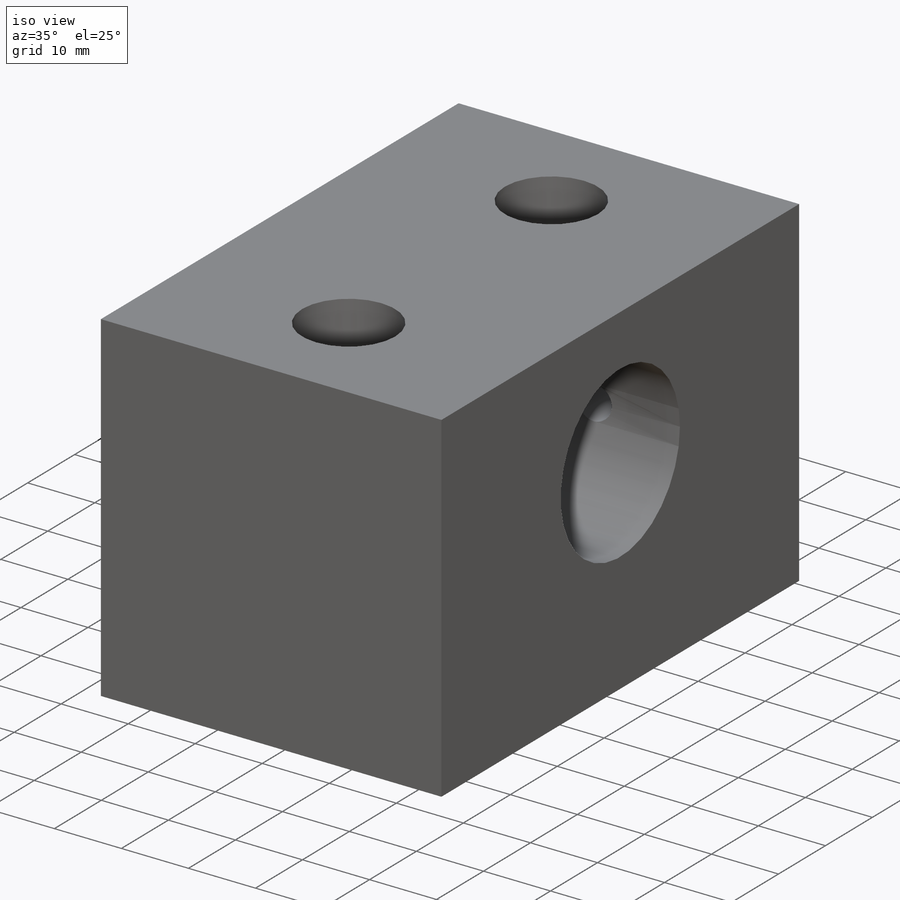
[diagram: iso view]
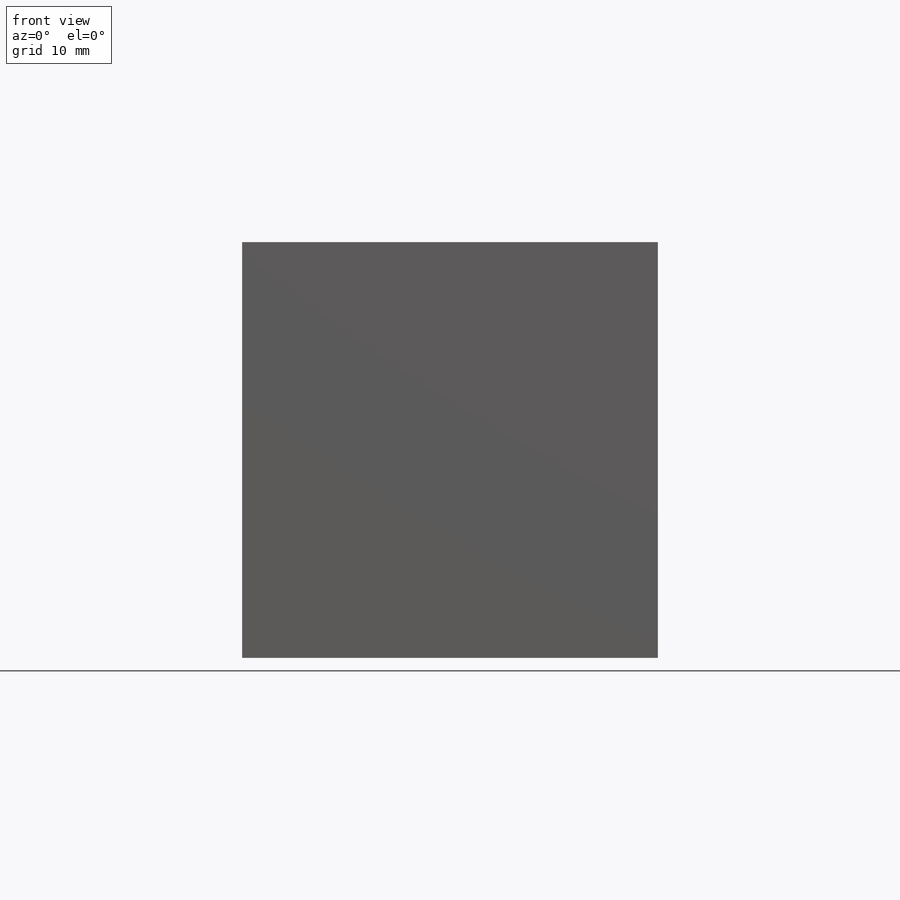
[diagram: front view]
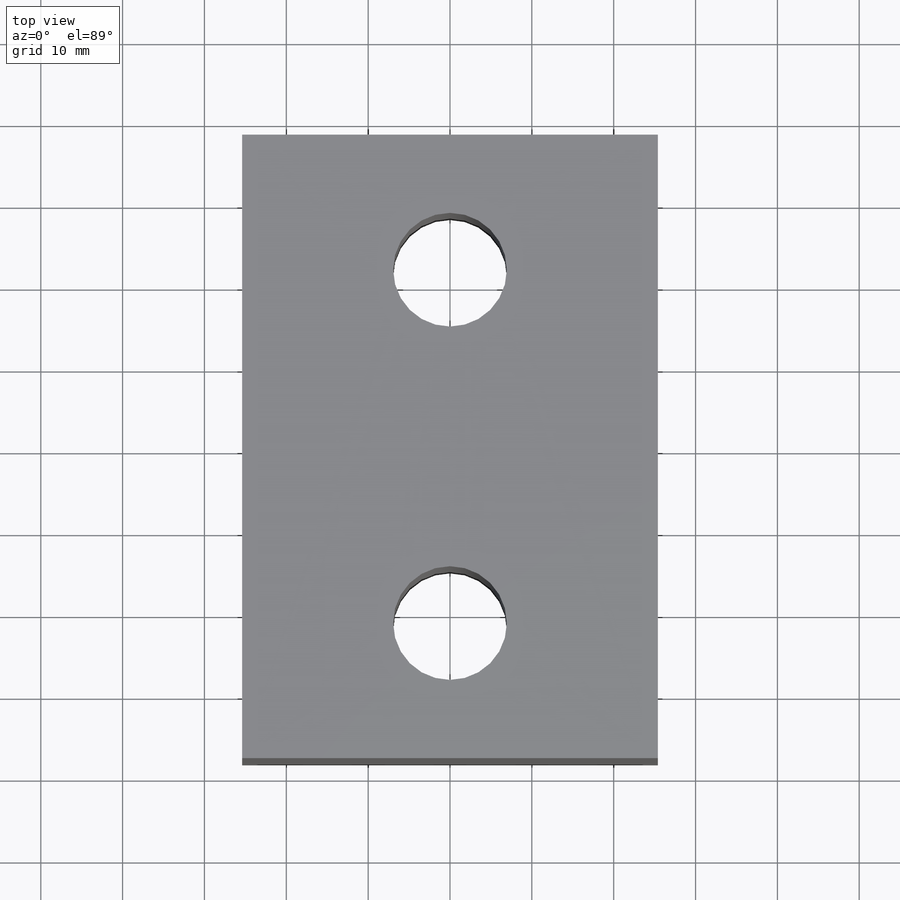
[diagram: top view]
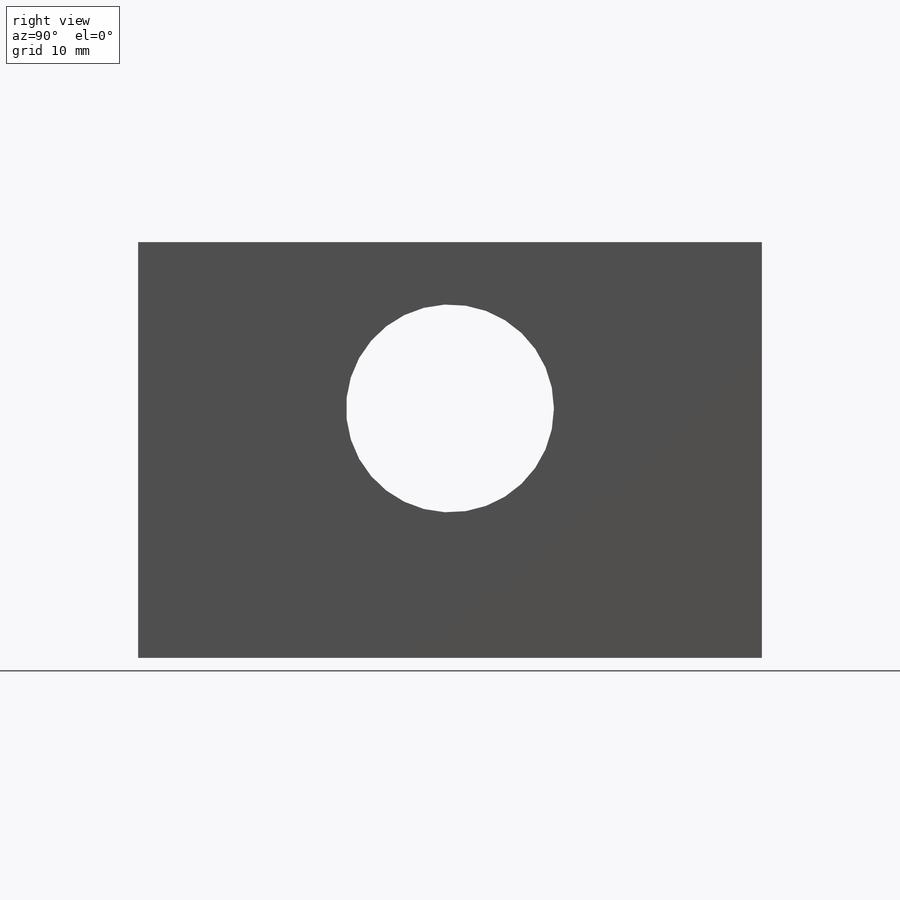
[diagram: right view]
SOLIDWORKS PART (.sldprt)
format: sldprt  version: not decoded by parser v0  size: 228,864 bytes
history: native  units: mm
features: sketch x8, hole x2, mirror x2, material x1, extrude x1, cut_extrude x1, thread x1 (+12 scaffold rows collapsed)
feature tree (28):
  scaffold x12  (default folders/planes/origin — collapsed)
  material  "6061-T6 (SS)"
  sketch  "Sketch1"  dims[D1=50.8mm D2=50.8mm]
  extrude  "Extrude1"  Depth=76.2mm
  sketch  "Sketch2"  dims[D2=25.4mm D1=34.925mm D3=30.48mm]
  cut_extrude  "Extrude2"  [1 undecoded]
  sketch  "Sketch3"  dims[D1=16.51mm]
  hole  "1/2 Clearance Hole1"  Diameter=13.89126mm Depth=50.8mm
  sketch  "3DSketch1"
  sketch  "Sketch5"  dims[hole-wizard template sketch: 59 standard entries collapsed; hole parameters kept: c18.Thru Hole Dia.=~13.89126mm c18.Thru Hole Depth=50.8mm]
  mirror  "Mirror1"
  sketch  "Sketch6"  dims[D1=30.48mm D2=12.7mm]
  hole  "1/4-20 Tapped Hole1"  Diameter=5.1054mm Depth=76.2mm
  sketch  "3DSketch2"
  sketch  "Sketch7"  dims[hole-wizard template sketch: 60 standard entries collapsed; hole parameters kept: c18.Thru Tap Drill Depth=76.2mm]
  thread  "Hole Thread1"  Diameter=6.35mm  [1 undecoded]
  mirror  "Mirror2"
decode coverage: 10 of 15 modeling features carry decoded parameters
note: ~ marks probable driven/reference dimensions
note: 2 parameter values undecoded
note: suppression state not decoded; provenance and decode notes live in map.json
